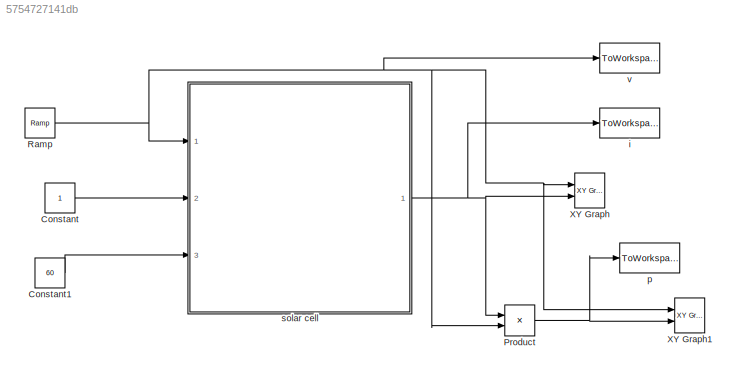
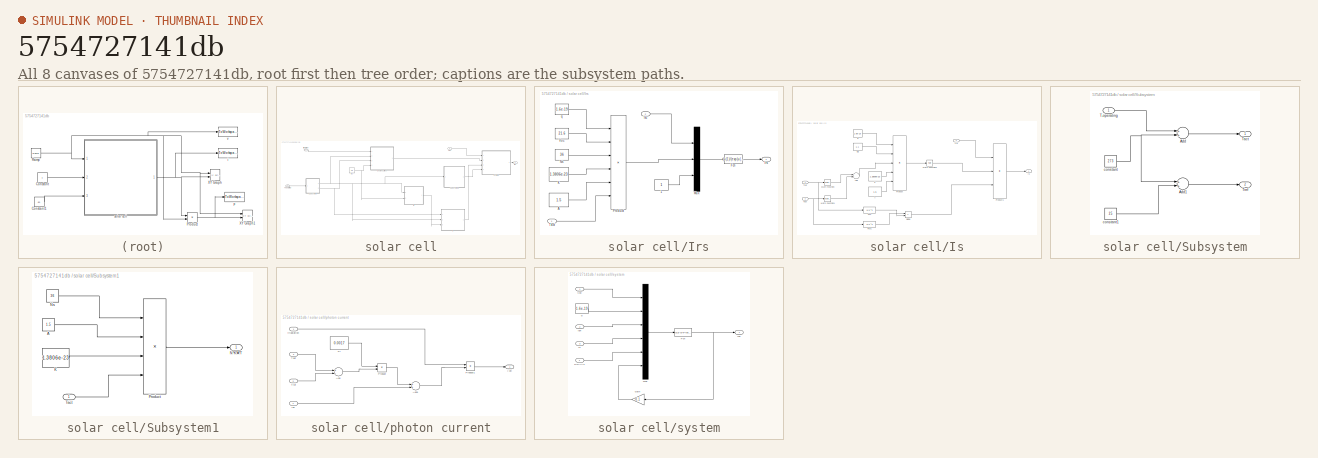
[diagram: thumbnail index - all 8 canvases of the model, root first then tree order]
MODEL slx_5754727141db
KIND model
CONFIG AbsTol = auto
CONFIG EnableMultiTasking = on
CONFIG FixedStep = auto
CONFIG MaxStep = auto
CONFIG MinStep = auto
CONFIG RelTol = 1e-3
CONFIG SampleTimeConstraint = Unconstrained
CONFIG Solver = ode23tb
CONFIG SolverName = ode23tb
CONFIG StartTime = 0.0
CONFIG StopTime = 1.5
BLOCK [Constant] Constant
BLOCK [Constant] Constant1
  Value = 60
BLOCK [Product] Product
  InputSameDT = off
  OutDataTypeStr = Inherit: Inherit via internal rule
  Ports = [2, 1]
  RndMeth = Floor
  SaturateOnIntegerOverflow = off
BLOCK [Reference] Ramp  REF=simulink/Sources/Ramp
  Ports = [0, 1]
  SourceBlock = simulink/Sources/Ramp
  SourceProductBaseCode = SL
  SourceProductName = Simulink
  SourceType = Ramp
BLOCK [Reference] XY Graph  REF=simulink/Sinks/XY Graph
  Ports = [2]
  SourceBlock = simulink/Sinks/XY Graph
  SourceProductBaseCode = SL
  SourceProductName = Simulink
  SourceType = XY scope.
BLOCK [Reference] XY Graph1  REF=simulink/Sinks/XY Graph
  Ports = [2]
  SourceBlock = simulink/Sinks/XY Graph
  SourceProductBaseCode = SL
  SourceProductName = Simulink
  SourceType = XY scope.
BLOCK [ToWorkspace] i
  FixptAsFi = on
  MaxDataPoints = inf
  Ports = [1]
  SampleTime = -1
  Save2DSignal = 3-D array (concatenate along third dimension)
  VariableName = i
BLOCK [ToWorkspace] p
  FixptAsFi = on
  MaxDataPoints = inf
  Ports = [1]
  SampleTime = -1
  Save2DSignal = 3-D array (concatenate along third dimension)
  VariableName = p
BLOCK [SubSystem] solar cell
  Ports = [3, 1]
  RequestExecContextInheritance = off
BLOCK [Outport] solar cell/Ipv
  IconDisplay = Port number
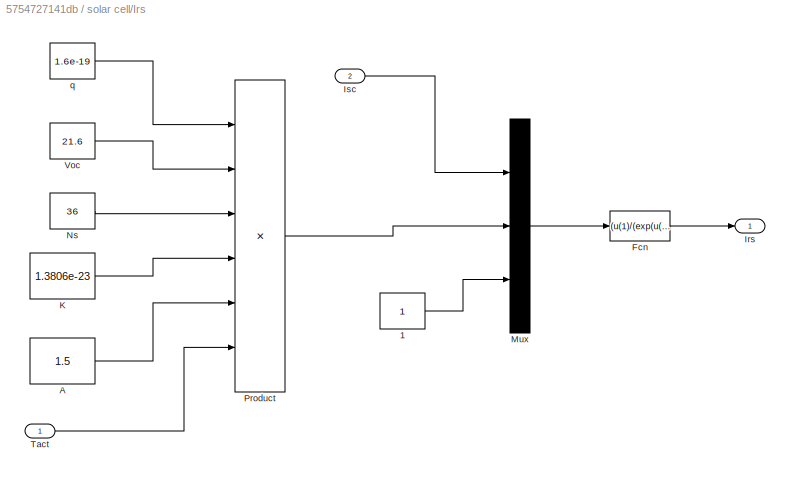
BLOCK [SubSystem] solar cell/Irs
  Ports = [2, 1]
  RequestExecContextInheritance = off
BLOCK [Constant] solar cell/Irs/1
BLOCK [Constant] solar cell/Irs/A
  Value = 1.5
BLOCK [Fcn] solar cell/Irs/Fcn
  Expr = (u(1)/(exp(u(2))-u(3)))
BLOCK [Outport] solar cell/Irs/Irs
  IconDisplay = Port number
BLOCK [Inport] solar cell/Irs/Isc
  IconDisplay = Port number
  Port = 2
BLOCK [Constant] solar cell/Irs/K
  Value = 1.3806e-23
BLOCK [Mux] solar cell/Irs/Mux
  DisplayOption = bar
  Inputs = 3
  Ports = [3, 1]
BLOCK [Constant] solar cell/Irs/Ns
  Value = 36
BLOCK [Product] solar cell/Irs/Product
  InputSameDT = off
  Inputs = **////
  OutDataTypeStr = Inherit: Inherit via internal rule
  Ports = [6, 1]
  RndMeth = Floor
  SaturateOnIntegerOverflow = off
BLOCK [Inport] solar cell/Irs/Tact
  IconDisplay = Port number
BLOCK [Constant] solar cell/Irs/Voc
  Value = 21.6
BLOCK [Constant] solar cell/Irs/q
  Value = 1.6e-19
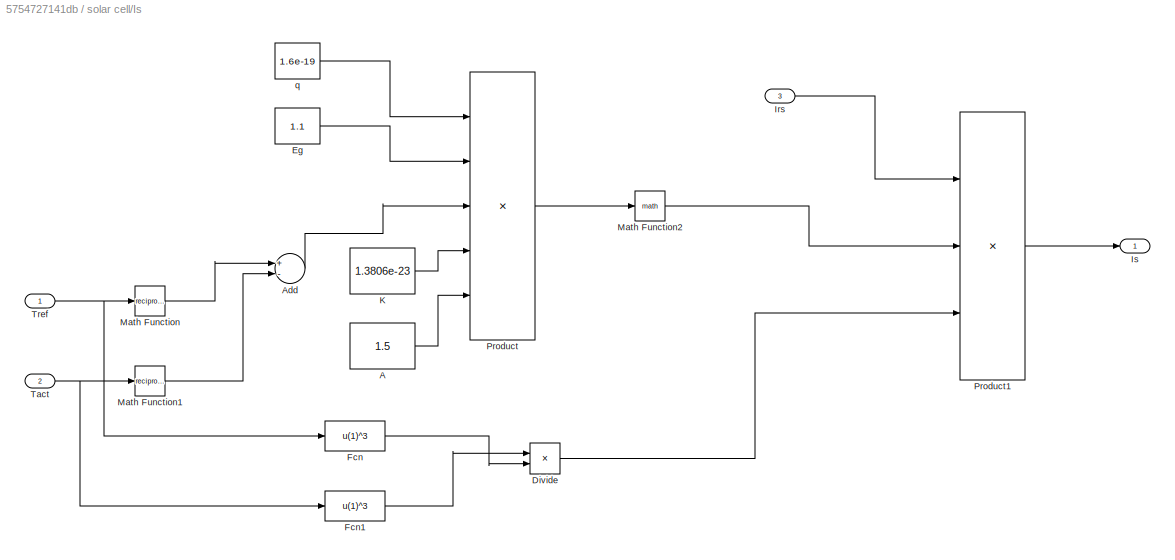
BLOCK [SubSystem] solar cell/Is
  Ports = [3, 1]
  RequestExecContextInheritance = off
BLOCK [Constant] solar cell/Is/A
  Value = 1.5
BLOCK [Sum] solar cell/Is/Add
  InputSameDT = off
  Inputs = +-
  OutDataTypeStr = Inherit: Inherit via internal rule
  Ports = [2, 1]
  SaturateOnIntegerOverflow = off
BLOCK [Product] solar cell/Is/Divide
  InputSameDT = off
  Inputs = */
  OutDataTypeStr = Inherit: Inherit via internal rule
  Ports = [2, 1]
  RndMeth = Floor
  SaturateOnIntegerOverflow = off
BLOCK [Constant] solar cell/Is/Eg
  Value = 1.1
BLOCK [Fcn] solar cell/Is/Fcn
  Expr = u(1)^3
BLOCK [Fcn] solar cell/Is/Fcn1
  Expr = u(1)^3
BLOCK [Inport] solar cell/Is/Irs
  IconDisplay = Port number
  Port = 3
BLOCK [Outport] solar cell/Is/Is
  IconDisplay = Port number
BLOCK [Constant] solar cell/Is/K
  Value = 1.3806e-23
BLOCK [Math] solar cell/Is/Math Function
  Operator = reciprocal
  Ports = [1, 1]
BLOCK [Math] solar cell/Is/Math Function1
  Operator = reciprocal
  Ports = [1, 1]
BLOCK [Math] solar cell/Is/Math Function2
  Ports = [1, 1]
BLOCK [Product] solar cell/Is/Product
  InputSameDT = off
  Inputs = ***//
  OutDataTypeStr = Inherit: Inherit via internal rule
  Ports = [5, 1]
  RndMeth = Floor
  SaturateOnIntegerOverflow = off
BLOCK [Product] solar cell/Is/Product1
  InputSameDT = off
  Inputs = ***
  OutDataTypeStr = Inherit: Inherit via internal rule
  Ports = [3, 1]
  RndMeth = Floor
  SaturateOnIntegerOverflow = off
BLOCK [Inport] solar cell/Is/Tact
  IconDisplay = Port number
  Port = 2
BLOCK [Inport] solar cell/Is/Tref
  IconDisplay = Port number
BLOCK [Constant] solar cell/Is/q
  Value = 1.6e-19
BLOCK [Constant] solar cell/Isc
  Value = 2.9
BLOCK [SubSystem] solar cell/Subsystem
  Ports = [1, 2]
  RequestExecContextInheritance = off
BLOCK [Sum] solar cell/Subsystem/Add
  InputSameDT = off
  OutDataTypeStr = Inherit: Inherit via internal rule
  Ports = [2, 1]
  SaturateOnIntegerOverflow = off
BLOCK [Sum] solar cell/Subsystem/Add1
  InputSameDT = off
  OutDataTypeStr = Inherit: Inherit via internal rule
  Ports = [2, 1]
  SaturateOnIntegerOverflow = off
BLOCK [Inport] solar cell/Subsystem/T-operating
  IconDisplay = Port number
BLOCK [Outport] solar cell/Subsystem/Tact
  IconDisplay = Port number
BLOCK [Outport] solar cell/Subsystem/Tref
  IconDisplay = Port number
  Port = 2
BLOCK [Constant] solar cell/Subsystem/constant
  Value = 273
BLOCK [Constant] solar cell/Subsystem/constant1
  Value = 25
BLOCK [SubSystem] solar cell/Subsystem1
  Ports = [1, 1]
  RequestExecContextInheritance = off
BLOCK [Constant] solar cell/Subsystem1/A
  Value = 1.5
BLOCK [Constant] solar cell/Subsystem1/K
  Value = 1.3806e-23
BLOCK [Outport] solar cell/Subsystem1/N*K*A*T
  IconDisplay = Port number
BLOCK [Constant] solar cell/Subsystem1/Ns
  Value = 36
BLOCK [Product] solar cell/Subsystem1/Product
  InputSameDT = off
  Inputs = ****
  OutDataTypeStr = Inherit: Inherit via internal rule
  Ports = [4, 1]
  RndMeth = Floor
  SaturateOnIntegerOverflow = off
BLOCK [Inport] solar cell/Subsystem1/Tact
  IconDisplay = Port number
BLOCK [Inport] solar cell/T-operating
  IconDisplay = Port number
  Port = 3
BLOCK [Inport] solar cell/Vpv
  IconDisplay = Port number
BLOCK [Inport] solar cell/irradiation
  IconDisplay = Port number
  Port = 2
BLOCK [SubSystem] solar cell/photon current
  Ports = [4, 1]
  RequestExecContextInheritance = off
BLOCK [Sum] solar cell/photon current/Add
  InputSameDT = off
  Inputs = +-
  OutDataTypeStr = Inherit: Inherit via internal rule
  Ports = [2, 1]
  SaturateOnIntegerOverflow = off
BLOCK [Sum] solar cell/photon current/Add1
  InputSameDT = off
  OutDataTypeStr = Inherit: Inherit via internal rule
  Ports = [2, 1]
  SaturateOnIntegerOverflow = off
BLOCK [Outport] solar cell/photon current/I-ph
  IconDisplay = Port number
BLOCK [Inport] solar cell/photon current/Isc
  IconDisplay = Port number
  Port = 4
BLOCK [Constant] solar cell/photon current/Ki
  Value = 0.0017
BLOCK [Product] solar cell/photon current/Product
  InputSameDT = off
  OutDataTypeStr = Inherit: Inherit via internal rule
  Ports = [2, 1]
  RndMeth = Floor
  SaturateOnIntegerOverflow = off
BLOCK [Product] solar cell/photon current/Product1
  InputSameDT = off
  OutDataTypeStr = Inherit: Inherit via internal rule
  Ports = [2, 1]
  RndMeth = Floor
  SaturateOnIntegerOverflow = off
BLOCK [Inport] solar cell/photon current/Tact
  IconDisplay = Port number
  Port = 2
BLOCK [Inport] solar cell/photon current/Tref
  IconDisplay = Port number
  Port = 3
BLOCK [Inport] solar cell/photon current/irradiation
  IconDisplay = Port number
BLOCK [SubSystem] solar cell/system
  Ports = [4, 1]
  RequestExecContextInheritance = off
BLOCK [Fcn] solar cell/system/Fcn
  Expr = u(3)-u(4)*(exp((u(2))*(u(1)+u(6))/(u(5)))-1)
BLOCK [Gain] solar cell/system/Gain
  Gain = 0.1
  OutDataTypeStr = Inherit: Inherit via internal rule
  ParamDataTypeStr = Inherit: Inherit via internal rule
  SaturateOnIntegerOverflow = off
BLOCK [Inport] solar cell/system/Iph
  IconDisplay = Port number
  Port = 2
BLOCK [Outport] solar cell/system/Ipv
  IconDisplay = Port number
BLOCK [Inport] solar cell/system/Is
  IconDisplay = Port number
  Port = 3
BLOCK [Mux] solar cell/system/Mux
  DisplayOption = bar
  Inputs = 6
  Ports = [6, 1]
BLOCK [Inport] solar cell/system/N*K*A*T
  IconDisplay = Port number
  Port = 4
BLOCK [Inport] solar cell/system/Vpv
  IconDisplay = Port number
BLOCK [Constant] solar cell/system/q
  Value = 1.6e-19
BLOCK [ToWorkspace] v
  FixptAsFi = on
  MaxDataPoints = inf
  Ports = [1]
  SampleTime = -1
  Save2DSignal = 3-D array (concatenate along third dimension)
  VariableName = v
LINE Constant1:1 -> solar cell:3
LINE Constant:1 -> solar cell:2
NET Product:1 -> XY Graph1:2, p:1
NET Ramp:1 -> Product:2, XY Graph1:1, XY Graph:1, solar cell:1, v:1
LINE solar cell/Irs/1:1 -> solar cell/Irs/Mux:3
LINE solar cell/Irs/A:1 -> solar cell/Irs/Product:5
LINE solar cell/Irs/Fcn:1 -> solar cell/Irs/Irs:1
LINE solar cell/Irs/Isc:1 -> solar cell/Irs/Mux:1
LINE solar cell/Irs/K:1 -> solar cell/Irs/Product:4
LINE solar cell/Irs/Mux:1 -> solar cell/Irs/Fcn:1
LINE solar cell/Irs/Ns:1 -> solar cell/Irs/Product:3
LINE solar cell/Irs/Product:1 -> solar cell/Irs/Mux:2
LINE solar cell/Irs/Tact:1 -> solar cell/Irs/Product:6
LINE solar cell/Irs/Voc:1 -> solar cell/Irs/Product:2
LINE solar cell/Irs/q:1 -> solar cell/Irs/Product:1
LINE solar cell/Irs:1 -> solar cell/Is:3
LINE solar cell/Is/A:1 -> solar cell/Is/Product:5
LINE solar cell/Is/Add:1 -> solar cell/Is/Product:3
LINE solar cell/Is/Divide:1 -> solar cell/Is/Product1:3
LINE solar cell/Is/Eg:1 -> solar cell/Is/Product:2
LINE solar cell/Is/Fcn1:1 -> solar cell/Is/Divide:1
LINE solar cell/Is/Fcn:1 -> solar cell/Is/Divide:2
LINE solar cell/Is/Irs:1 -> solar cell/Is/Product1:1
LINE solar cell/Is/K:1 -> solar cell/Is/Product:4
LINE solar cell/Is/Math Function1:1 -> solar cell/Is/Add:2
LINE solar cell/Is/Math Function2:1 -> solar cell/Is/Product1:2
LINE solar cell/Is/Math Function:1 -> solar cell/Is/Add:1
LINE solar cell/Is/Product1:1 -> solar cell/Is/Is:1
LINE solar cell/Is/Product:1 -> solar cell/Is/Math Function2:1
NET solar cell/Is/Tact:1 -> solar cell/Is/Fcn1:1, solar cell/Is/Math Function1:1
NET solar cell/Is/Tref:1 -> solar cell/Is/Fcn:1, solar cell/Is/Math Function:1
LINE solar cell/Is/q:1 -> solar cell/Is/Product:1
LINE solar cell/Is:1 -> solar cell/system:3
NET solar cell/Isc:1 -> solar cell/Irs:2, solar cell/photon current:4
LINE solar cell/Subsystem/Add1:1 -> solar cell/Subsystem/Tref:1
LINE solar cell/Subsystem/Add:1 -> solar cell/Subsystem/Tact:1
LINE solar cell/Subsystem/T-operating:1 -> solar cell/Subsystem/Add:1
LINE solar cell/Subsystem/constant1:1 -> solar cell/Subsystem/Add1:2
NET solar cell/Subsystem/constant:1 -> solar cell/Subsystem/Add1:1, solar cell/Subsystem/Add:2
LINE solar cell/Subsystem1/A:1 -> solar cell/Subsystem1/Product:2
LINE solar cell/Subsystem1/K:1 -> solar cell/Subsystem1/Product:3
LINE solar cell/Subsystem1/Ns:1 -> solar cell/Subsystem1/Product:1
LINE solar cell/Subsystem1/Product:1 -> solar cell/Subsystem1/N*K*A*T:1
LINE solar cell/Subsystem1/Tact:1 -> solar cell/Subsystem1/Product:4
LINE solar cell/Subsystem1:1 -> solar cell/system:4
NET solar cell/Subsystem:1 -> solar cell/Irs:1, solar cell/Is:2, solar cell/Subsystem1:1, solar cell/photon current:2
NET solar cell/Subsystem:2 -> solar cell/Is:1, solar cell/photon current:3
LINE solar cell/T-operating:1 -> solar cell/Subsystem:1
LINE solar cell/Vpv:1 -> solar cell/system:1
LINE solar cell/irradiation:1 -> solar cell/photon current:1
LINE solar cell/photon current/Add1:1 -> solar cell/photon current/Product1:2
LINE solar cell/photon current/Add:1 -> solar cell/photon current/Product:2
LINE solar cell/photon current/Isc:1 -> solar cell/photon current/Add1:2
LINE solar cell/photon current/Ki:1 -> solar cell/photon current/Product:1
LINE solar cell/photon current/Product1:1 -> solar cell/photon current/I-ph:1
LINE solar cell/photon current/Product:1 -> solar cell/photon current/Add1:1
LINE solar cell/photon current/Tact:1 -> solar cell/photon current/Add:1
LINE solar cell/photon current/Tref:1 -> solar cell/photon current/Add:2
LINE solar cell/photon current/irradiation:1 -> solar cell/photon current/Product1:1
LINE solar cell/photon current:1 -> solar cell/system:2
NET solar cell/system/Fcn:1 -> solar cell/system/Gain:1, solar cell/system/Ipv:1
LINE solar cell/system/Gain:1 -> solar cell/system/Mux:6
LINE solar cell/system/Iph:1 -> solar cell/system/Mux:3
LINE solar cell/system/Is:1 -> solar cell/system/Mux:4
LINE solar cell/system/Mux:1 -> solar cell/system/Fcn:1
LINE solar cell/system/N*K*A*T:1 -> solar cell/system/Mux:5
LINE solar cell/system/Vpv:1 -> solar cell/system/Mux:1
LINE solar cell/system/q:1 -> solar cell/system/Mux:2
LINE solar cell/system:1 -> solar cell/Ipv:1
NET solar cell:1 -> Product:1, XY Graph:2, i:1
note: NET lines group one-source signal fan-out (src -> all destinations, sorted); 1:1 wires keep LINE
